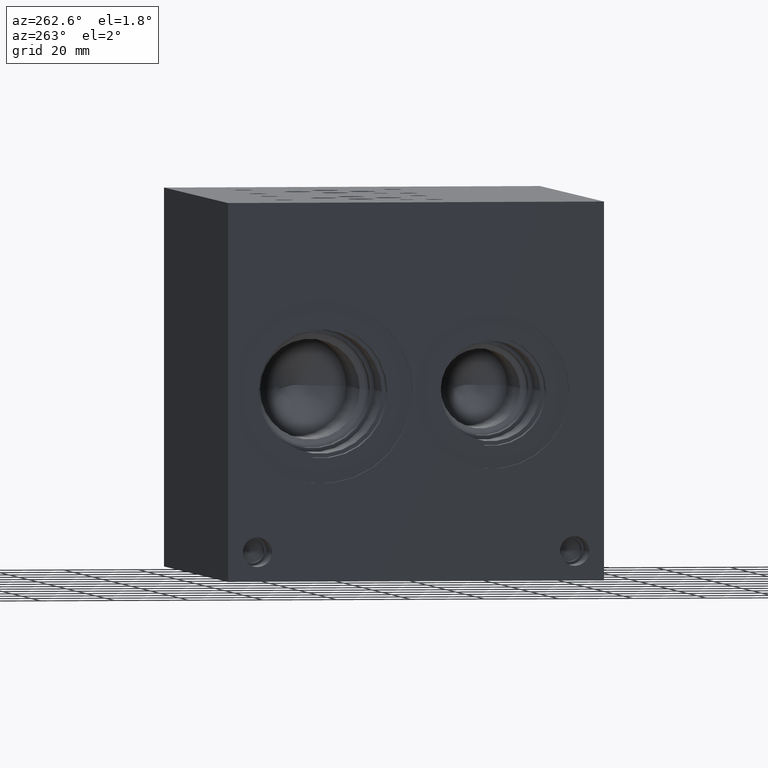
[diagram: clean part render]
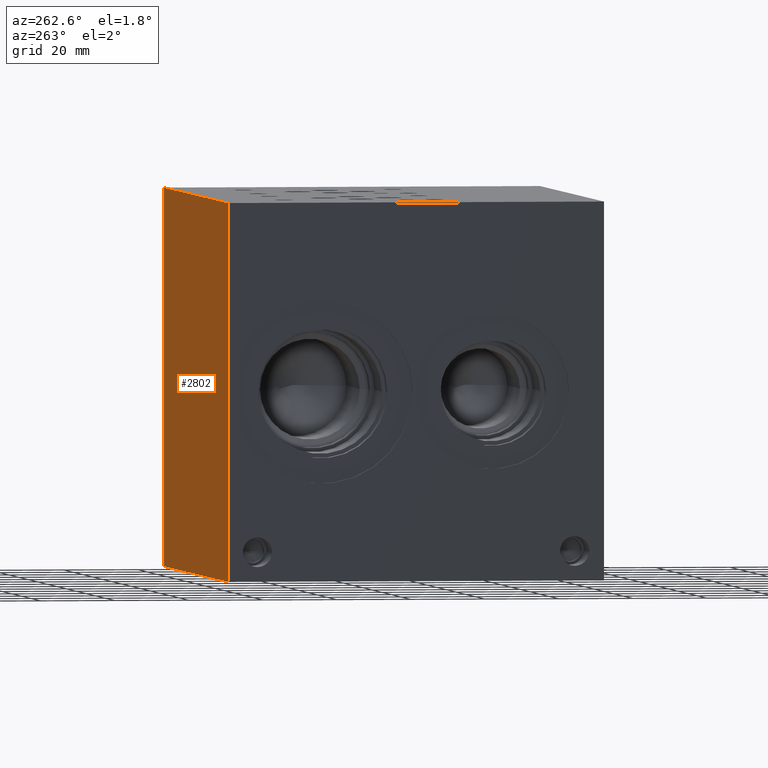
[diagram: same view with one face highlighted and labeled with its STEP entity id]
A machine part, auxiliary view. The second image highlights one B-rep face of the part: STEP entity #2802.
In plain terms, the highlighted planar face has unit normal (0, 1, 0).
Its self-contained STEP definition (entity closure, byte-faithful):
#118=PLANE('',#3244);
#352=FACE_OUTER_BOUND('',#550,.T.);
#550=EDGE_LOOP('',(#2537,#2538,#2539,#2540));
#700=LINE('',#5082,#828);
#701=LINE('',#5085,#829);
#702=LINE('',#5087,#830);
#703=LINE('',#5088,#831);
#828=VECTOR('',#4216,10.);
#829=VECTOR('',#4219,10.);
#830=VECTOR('',#4220,10.);
#831=VECTOR('',#4221,10.);
#1407=VERTEX_POINT('',#5075);
#1410=VERTEX_POINT('',#5080);
#1411=VERTEX_POINT('',#5084);
#1412=VERTEX_POINT('',#5086);
#1804=EDGE_CURVE('',#1407,#1410,#700,.T.);
#1805=EDGE_CURVE('',#1411,#1407,#701,.T.);
#1806=EDGE_CURVE('',#1412,#1410,#702,.T.);
#1807=EDGE_CURVE('',#1411,#1412,#703,.T.);
#2537=ORIENTED_EDGE('',*,*,#1805,.T.);
#2538=ORIENTED_EDGE('',*,*,#1804,.T.);
#2539=ORIENTED_EDGE('',*,*,#1806,.F.);
#2540=ORIENTED_EDGE('',*,*,#1807,.F.);
#2802=ADVANCED_FACE('',(#352),#118,.T.);
#3244=AXIS2_PLACEMENT_3D('',#5083,#4217,#4218);
#4216=DIRECTION('',(0.,0.,1.));
#4217=DIRECTION('center_axis',(0.,1.,0.));
#4218=DIRECTION('ref_axis',(-1.,0.,0.));
#4219=DIRECTION('',(-1.,0.,0.));
#4220=DIRECTION('',(-1.,0.,0.));
#4221=DIRECTION('',(0.,0.,1.));
#5075=CARTESIAN_POINT('',(0.,101.6,0.));
#5080=CARTESIAN_POINT('',(0.,101.6,101.6));
#5082=CARTESIAN_POINT('',(0.,101.6,0.));
#5083=CARTESIAN_POINT('Origin',(133.35,101.6,0.));
#5084=CARTESIAN_POINT('',(133.35,101.6,0.));
#5085=CARTESIAN_POINT('',(133.35,101.6,0.));
#5086=CARTESIAN_POINT('',(133.35,101.6,101.6));
#5087=CARTESIAN_POINT('',(133.35,101.6,101.6));
#5088=CARTESIAN_POINT('',(133.35,101.6,0.));